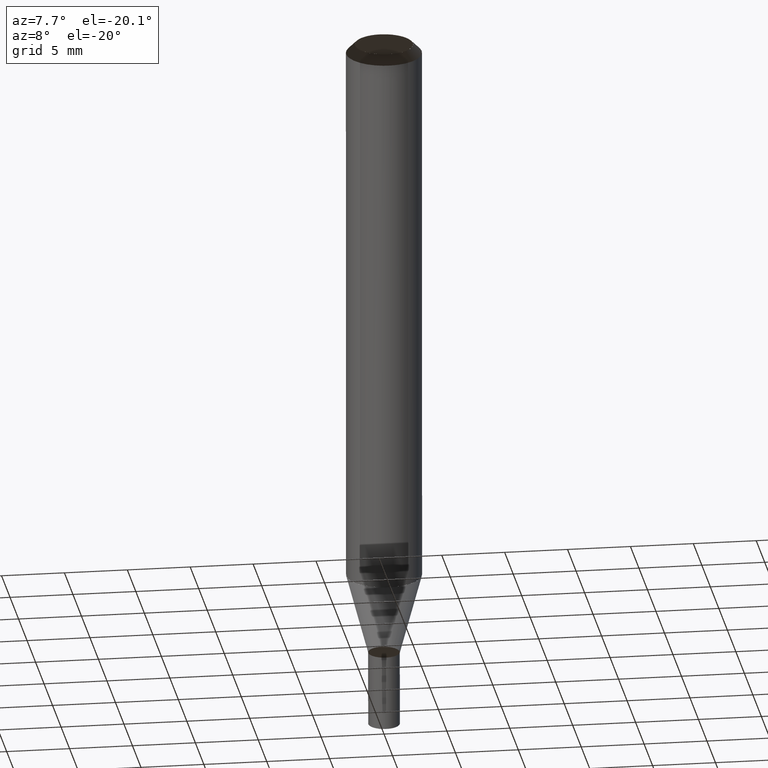
[diagram: clean part render]
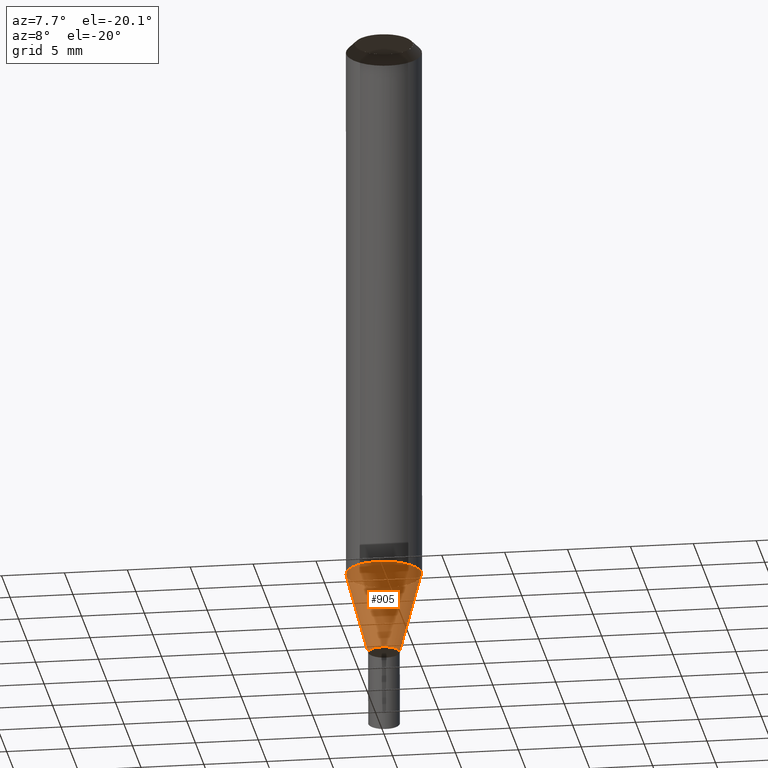
[diagram: same view with one face highlighted and labeled with its STEP entity id]
A machine part, auxiliary view. The second image highlights one B-rep face of the part: STEP entity #905.
In plain terms, the highlighted face is a freeform B-spline surface patch.
Its self-contained STEP definition (entity closure, byte-faithful):
#583=CARTESIAN_POINT('',(1.25,0.0,-6.531069229));
#587=CARTESIAN_POINT('',(-1.25,0.0,-6.531069229));
#595=CARTESIAN_POINT('',(-1.25,-1.25,-6.531069229));
#596=CARTESIAN_POINT('',(0.0,-1.25,-6.531069229));
#597=CARTESIAN_POINT('',(1.25,-1.25,-6.531069229));
#598=CARTESIAN_POINT('',(3.0,0.0,0.0));
#602=CARTESIAN_POINT('',(-3.0,0.0,0.0));
#614=CARTESIAN_POINT('',(-3.0,-3.0,0.0));
#615=CARTESIAN_POINT('',(0.0,-3.0,0.0));
#616=CARTESIAN_POINT('',(3.0,-3.0,0.0));
#886=(
BOUNDED_SURFACE()
B_SPLINE_SURFACE(1,2,(
(#587,#595,#596,#597,#583),
(#602,#614,#615,#616,#598)
), .UNSPECIFIED.,.F.,.F.,.F.)
B_SPLINE_SURFACE_WITH_KNOTS((2,2),(3,2,3),(
0.0,1.0),(
0.0,0.5,1.0), .UNSPECIFIED.)
GEOMETRIC_REPRESENTATION_ITEM()
RATIONAL_B_SPLINE_SURFACE(((1.0,0.707106781187,1.0,0.707106781187,1.0),
(1.0,0.707106781187,1.0,0.707106781187,1.0)
))
REPRESENTATION_ITEM('')
SURFACE()
);
#887=(
BOUNDED_CURVE()
B_SPLINE_CURVE(1,(#602,#587),.UNSPECIFIED.,.F.,.F.)
B_SPLINE_CURVE_WITH_KNOTS((2,2),
(0.0,1.0),.UNSPECIFIED.)
CURVE()
GEOMETRIC_REPRESENTATION_ITEM()
RATIONAL_B_SPLINE_CURVE((1.0,1.0))
REPRESENTATION_ITEM('')
);
#888=(
BOUNDED_CURVE()
B_SPLINE_CURVE(2,(#587,#595,#596,#597,#583),.UNSPECIFIED.,.F.,.F.)
B_SPLINE_CURVE_WITH_KNOTS((3,2,3),
(0.0,0.5,1.0),.UNSPECIFIED.)
CURVE()
GEOMETRIC_REPRESENTATION_ITEM()
RATIONAL_B_SPLINE_CURVE((1.0,0.707106781187,1.0,0.707106781187,1.0))
REPRESENTATION_ITEM('')
);
#889=(
BOUNDED_CURVE()
B_SPLINE_CURVE(1,(#583,#598),.UNSPECIFIED.,.F.,.F.)
B_SPLINE_CURVE_WITH_KNOTS((2,2),
(0.0,1.0),.UNSPECIFIED.)
CURVE()
GEOMETRIC_REPRESENTATION_ITEM()
RATIONAL_B_SPLINE_CURVE((1.0,1.0))
REPRESENTATION_ITEM('')
);
#890=(
BOUNDED_CURVE()
B_SPLINE_CURVE(2,(#598,#616,#615,#614,#602),.UNSPECIFIED.,.F.,.F.)
B_SPLINE_CURVE_WITH_KNOTS((3,2,3),
(0.0,0.5,1.0),.UNSPECIFIED.)
CURVE()
GEOMETRIC_REPRESENTATION_ITEM()
RATIONAL_B_SPLINE_CURVE((1.0,0.707106781187,1.0,0.707106781187,1.0))
REPRESENTATION_ITEM('')
);
#891=VERTEX_POINT('',#583);
#892=VERTEX_POINT('',#587);
#893=VERTEX_POINT('',#598);
#894=VERTEX_POINT('',#602);
#895=EDGE_CURVE('',#894,#892,#887,.T.);
#896=EDGE_CURVE('',#892,#891,#888,.T.);
#897=EDGE_CURVE('',#891,#893,#889,.T.);
#898=EDGE_CURVE('',#893,#894,#890,.T.);
#899=ORIENTED_EDGE('',*,*,#895,.T.);
#900=ORIENTED_EDGE('',*,*,#896,.T.);
#901=ORIENTED_EDGE('',*,*,#897,.T.);
#902=ORIENTED_EDGE('',*,*,#898,.T.);
#903=EDGE_LOOP('',(#899,#900,#901,#902));
#904=FACE_OUTER_BOUND('',#903,.T.);
#905=ADVANCED_FACE('',(#904),#886,.T.);